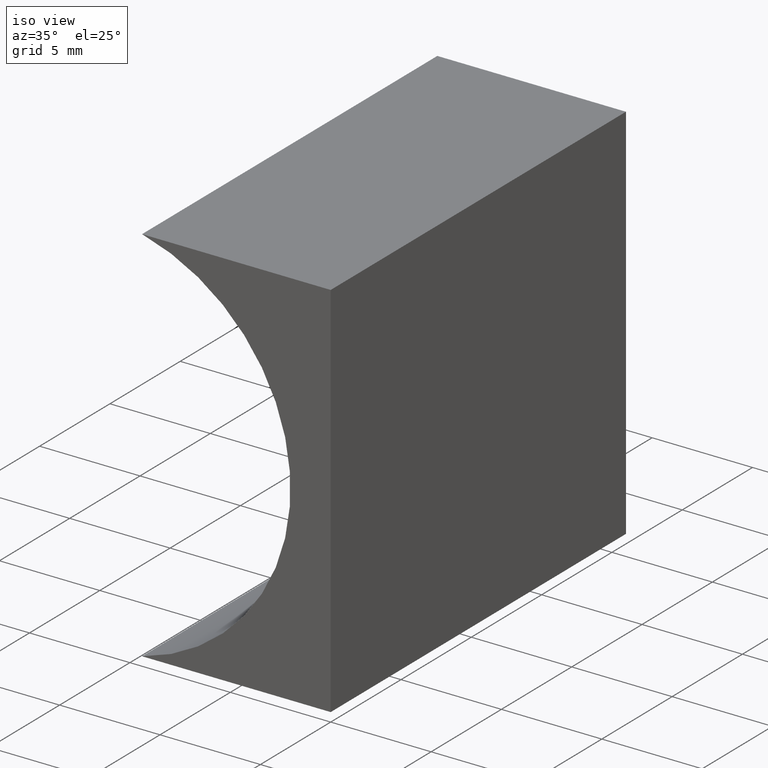
[diagram: clean part render]
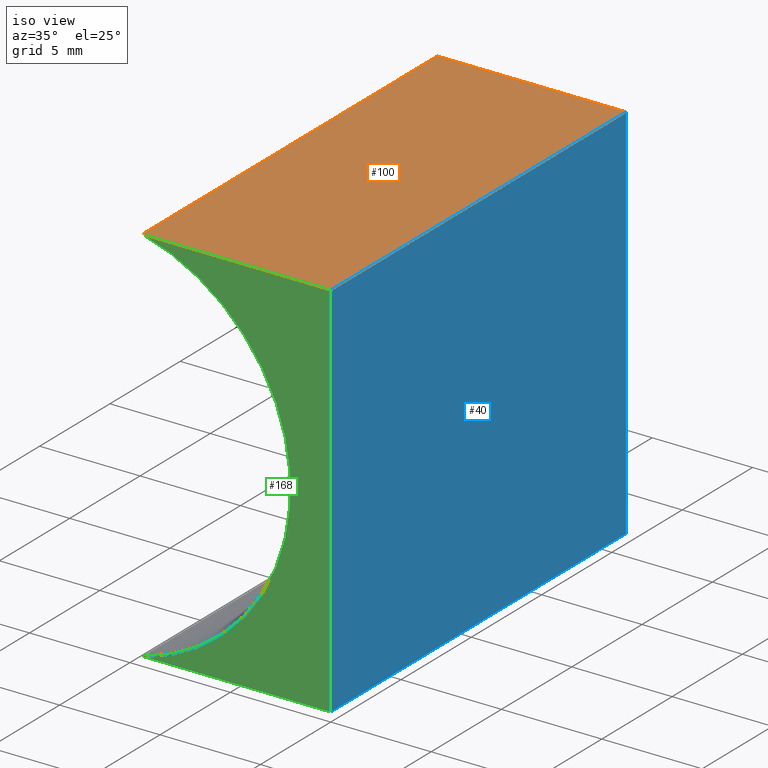
[diagram: same view with three faces highlighted in distinct colors, each labeled with its STEP entity id]
A machine part, iso view with three faces highlighted in distinct colors.
Their STEP definitions:

[orange] entity #100 — the highlighted planar face has unit normal (-0, 0, -1).
#1 = LINE ( 'NONE', #73, #2 ) ;
#2 = VECTOR ( 'NONE', #28, 1000.000000000000000 ) ;
#3 = VERTEX_POINT ( 'NONE', #93 ) ;
#5 = DIRECTION ( 'NONE',  ( 1.000000000000000000, -0.0000000000000000000, -3.693353510681764400E-016 ) ) ;
#17 = DIRECTION ( 'NONE',  ( -1.000000000000000000, 0.0000000000000000000, 3.693353510681765400E-016 ) ) ;
#18 = EDGE_CURVE ( 'NONE', #123, #200, #1, .T. ) ;
#26 = CARTESIAN_POINT ( 'NONE',  ( 1.163414459189985500E-015, 0.0000000000000000000, 19.00000000000000000 ) ) ;
#28 = DIRECTION ( 'NONE',  ( -0.0000000000000000000, -1.000000000000000000, -0.0000000000000000000 ) ) ;
#33 = EDGE_LOOP ( 'NONE', ( #137, #194, #66, #155 ) ) ;
#41 = FACE_OUTER_BOUND ( 'NONE', #33, .T. ) ;
#42 = DIRECTION ( 'NONE',  ( -3.693353510681765400E-016, 0.0000000000000000000, -1.000000000000000000 ) ) ;
#43 = DIRECTION ( 'NONE',  ( 1.000000000000000000, -0.0000000000000000000, -3.693353510681764400E-016 ) ) ;
#44 = DIRECTION ( 'NONE',  ( -0.0000000000000000000, -1.000000000000000000, -0.0000000000000000000 ) ) ;
#56 = EDGE_CURVE ( 'NONE', #123, #150, #89, .T. ) ;
#66 = ORIENTED_EDGE ( 'NONE', *, *, #56, .F. ) ;
#73 = CARTESIAN_POINT ( 'NONE',  ( -9.393758116896805200, 21.00000000000000000, 19.00000000000000400 ) ) ;
#85 = VECTOR ( 'NONE', #5, 1000.000000000000000 ) ;
#86 = CARTESIAN_POINT ( 'NONE',  ( -9.393758116896805200, 0.0000000000000000000, 19.00000000000000400 ) ) ;
#89 = LINE ( 'NONE', #97, #85 ) ;
#93 = CARTESIAN_POINT ( 'NONE',  ( 1.163414459189985500E-015, 0.0000000000000000000, 19.00000000000000000 ) ) ;
#97 = CARTESIAN_POINT ( 'NONE',  ( 1.163414459189985500E-015, 21.00000000000000000, 19.00000000000000000 ) ) ;
#100 = ADVANCED_FACE ( 'NONE', ( #41 ), #170, .F. ) ;
#101 = CARTESIAN_POINT ( 'NONE',  ( 1.163414459189985500E-015, 21.00000000000000000, 19.00000000000000000 ) ) ;
#107 = CARTESIAN_POINT ( 'NONE',  ( -9.393758116896805200, 21.00000000000000000, 19.00000000000000400 ) ) ;
#111 = LINE ( 'NONE', #101, #128 ) ;
#123 = VERTEX_POINT ( 'NONE', #107 ) ;
#128 = VECTOR ( 'NONE', #44, 1000.000000000000000 ) ;
#134 = VECTOR ( 'NONE', #43, 1000.000000000000000 ) ;
#137 = ORIENTED_EDGE ( 'NONE', *, *, #196, .T. ) ;
#141 = LINE ( 'NONE', #26, #134 ) ;
#147 = EDGE_CURVE ( 'NONE', #150, #3, #111, .T. ) ;
#150 = VERTEX_POINT ( 'NONE', #203 ) ;
#155 = ORIENTED_EDGE ( 'NONE', *, *, #18, .T. ) ;
#170 = PLANE ( 'NONE',  #204 ) ;
#193 = CARTESIAN_POINT ( 'NONE',  ( 1.163414459189985500E-015, 21.00000000000000000, 19.00000000000000000 ) ) ;
#194 = ORIENTED_EDGE ( 'NONE', *, *, #147, .F. ) ;
#196 = EDGE_CURVE ( 'NONE', #200, #3, #141, .T. ) ;
#200 = VERTEX_POINT ( 'NONE', #86 ) ;
#203 = CARTESIAN_POINT ( 'NONE',  ( 1.163414459189985500E-015, 21.00000000000000000, 19.00000000000000000 ) ) ;
#204 = AXIS2_PLACEMENT_3D ( 'NONE', #193, #42, #17 ) ;

[blue] entity #40 — the highlighted planar face has unit normal (-1, 0, 0).
#3 = VERTEX_POINT ( 'NONE', #93 ) ;
#4 = CARTESIAN_POINT ( 'NONE',  ( 0.0000000000000000000, 0.0000000000000000000, 0.0000000000000000000 ) ) ;
#21 = CARTESIAN_POINT ( 'NONE',  ( 0.0000000000000000000, 0.0000000000000000000, 0.0000000000000000000 ) ) ;
#25 = ORIENTED_EDGE ( 'NONE', *, *, #174, .F. ) ;
#40 = ADVANCED_FACE ( 'NONE', ( #76 ), #130, .F. ) ;
#44 = DIRECTION ( 'NONE',  ( -0.0000000000000000000, -1.000000000000000000, -0.0000000000000000000 ) ) ;
#48 = CARTESIAN_POINT ( 'NONE',  ( 0.0000000000000000000, 21.00000000000000000, 0.0000000000000000000 ) ) ;
#50 = ORIENTED_EDGE ( 'NONE', *, *, #158, .F. ) ;
#53 = VERTEX_POINT ( 'NONE', #88 ) ;
#69 = DIRECTION ( 'NONE',  ( -0.0000000000000000000, -1.000000000000000000, -0.0000000000000000000 ) ) ;
#76 = FACE_OUTER_BOUND ( 'NONE', #192, .T. ) ;
#78 = LINE ( 'NONE', #79, #117 ) ;
#79 = CARTESIAN_POINT ( 'NONE',  ( 0.0000000000000000000, 21.00000000000000000, 0.0000000000000000000 ) ) ;
#80 = LINE ( 'NONE', #21, #82 ) ;
#82 = VECTOR ( 'NONE', #179, 1000.000000000000000 ) ;
#88 = CARTESIAN_POINT ( 'NONE',  ( 0.0000000000000000000, 21.00000000000000000, 0.0000000000000000000 ) ) ;
#93 = CARTESIAN_POINT ( 'NONE',  ( 1.163414459189985500E-015, 0.0000000000000000000, 19.00000000000000000 ) ) ;
#98 = LINE ( 'NONE', #48, #146 ) ;
#101 = CARTESIAN_POINT ( 'NONE',  ( 1.163414459189985500E-015, 21.00000000000000000, 19.00000000000000000 ) ) ;
#102 = DIRECTION ( 'NONE',  ( -1.000000000000000000, 0.0000000000000000000, 6.123233995736767300E-017 ) ) ;
#109 = EDGE_CURVE ( 'NONE', #3, #160, #80, .T. ) ;
#111 = LINE ( 'NONE', #101, #128 ) ;
#115 = ORIENTED_EDGE ( 'NONE', *, *, #109, .T. ) ;
#117 = VECTOR ( 'NONE', #124, 1000.000000000000000 ) ;
#119 = AXIS2_PLACEMENT_3D ( 'NONE', #159, #102, #188 ) ;
#124 = DIRECTION ( 'NONE',  ( -6.123233995736766000E-017, -0.0000000000000000000, -1.000000000000000000 ) ) ;
#128 = VECTOR ( 'NONE', #44, 1000.000000000000000 ) ;
#130 = PLANE ( 'NONE',  #119 ) ;
#133 = ORIENTED_EDGE ( 'NONE', *, *, #147, .T. ) ;
#146 = VECTOR ( 'NONE', #69, 1000.000000000000000 ) ;
#147 = EDGE_CURVE ( 'NONE', #150, #3, #111, .T. ) ;
#150 = VERTEX_POINT ( 'NONE', #203 ) ;
#158 = EDGE_CURVE ( 'NONE', #150, #53, #78, .T. ) ;
#159 = CARTESIAN_POINT ( 'NONE',  ( 0.0000000000000000000, 21.00000000000000000, 0.0000000000000000000 ) ) ;
#160 = VERTEX_POINT ( 'NONE', #4 ) ;
#174 = EDGE_CURVE ( 'NONE', #53, #160, #98, .T. ) ;
#179 = DIRECTION ( 'NONE',  ( -6.123233995736766000E-017, -0.0000000000000000000, -1.000000000000000000 ) ) ;
#188 = DIRECTION ( 'NONE',  ( 6.123233995736767300E-017, 0.0000000000000000000, 1.000000000000000000 ) ) ;
#192 = EDGE_LOOP ( 'NONE', ( #115, #25, #50, #133 ) ) ;
#203 = CARTESIAN_POINT ( 'NONE',  ( 1.163414459189985500E-015, 21.00000000000000000, 19.00000000000000000 ) ) ;

[green] entity #168 — the highlighted planar face has unit normal (0, 1, 0).
#3 = VERTEX_POINT ( 'NONE', #93 ) ;
#4 = CARTESIAN_POINT ( 'NONE',  ( 0.0000000000000000000, 0.0000000000000000000, 0.0000000000000000000 ) ) ;
#14 = ORIENTED_EDGE ( 'NONE', *, *, #60, .F. ) ;
#21 = CARTESIAN_POINT ( 'NONE',  ( 0.0000000000000000000, 0.0000000000000000000, 0.0000000000000000000 ) ) ;
#24 = DIRECTION ( 'NONE',  ( -0.0000000000000000000, -1.000000000000000000, -0.0000000000000000000 ) ) ;
#26 = CARTESIAN_POINT ( 'NONE',  ( 1.163414459189985500E-015, 0.0000000000000000000, 19.00000000000000000 ) ) ;
#35 = CARTESIAN_POINT ( 'NONE',  ( -11.79999999999999900, 0.0000000000000000000, 9.500000000000003600 ) ) ;
#43 = DIRECTION ( 'NONE',  ( 1.000000000000000000, -0.0000000000000000000, -3.693353510681764400E-016 ) ) ;
#47 = EDGE_CURVE ( 'NONE', #160, #63, #74, .T. ) ;
#54 = CARTESIAN_POINT ( 'NONE',  ( -9.393758116896808700, 0.0000000000000000000, 1.734723475976807100E-015 ) ) ;
#60 = EDGE_CURVE ( 'NONE', #63, #200, #70, .T. ) ;
#63 = VERTEX_POINT ( 'NONE', #54 ) ;
#70 = CIRCLE ( 'NONE', #138, 9.800000000000000700 ) ;
#74 = LINE ( 'NONE', #87, #186 ) ;
#80 = LINE ( 'NONE', #21, #82 ) ;
#82 = VECTOR ( 'NONE', #179, 1000.000000000000000 ) ;
#86 = CARTESIAN_POINT ( 'NONE',  ( -9.393758116896805200, 0.0000000000000000000, 19.00000000000000400 ) ) ;
#87 = CARTESIAN_POINT ( 'NONE',  ( 0.0000000000000000000, 0.0000000000000000000, 0.0000000000000000000 ) ) ;
#90 = DIRECTION ( 'NONE',  ( -1.000000000000000000, 0.0000000000000000000, 0.0000000000000000000 ) ) ;
#91 = DIRECTION ( 'NONE',  ( 0.0000000000000000000, 1.000000000000000000, 0.0000000000000000000 ) ) ;
#93 = CARTESIAN_POINT ( 'NONE',  ( 1.163414459189985500E-015, 0.0000000000000000000, 19.00000000000000000 ) ) ;
#104 = ORIENTED_EDGE ( 'NONE', *, *, #196, .F. ) ;
#109 = EDGE_CURVE ( 'NONE', #3, #160, #80, .T. ) ;
#122 = FACE_OUTER_BOUND ( 'NONE', #165, .T. ) ;
#134 = VECTOR ( 'NONE', #43, 1000.000000000000000 ) ;
#138 = AXIS2_PLACEMENT_3D ( 'NONE', #144, #24, #184 ) ;
#141 = LINE ( 'NONE', #26, #134 ) ;
#142 = ORIENTED_EDGE ( 'NONE', *, *, #109, .F. ) ;
#144 = CARTESIAN_POINT ( 'NONE',  ( -11.79999999999999900, 0.0000000000000000000, 9.500000000000003600 ) ) ;
#154 = AXIS2_PLACEMENT_3D ( 'NONE', #35, #91, #163 ) ;
#160 = VERTEX_POINT ( 'NONE', #4 ) ;
#163 = DIRECTION ( 'NONE',  ( 0.0000000000000000000, -0.0000000000000000000, 1.000000000000000000 ) ) ;
#164 = PLANE ( 'NONE',  #154 ) ;
#165 = EDGE_LOOP ( 'NONE', ( #183, #142, #104, #14 ) ) ;
#168 = ADVANCED_FACE ( 'NONE', ( #122 ), #164, .F. ) ;
#179 = DIRECTION ( 'NONE',  ( -6.123233995736766000E-017, -0.0000000000000000000, -1.000000000000000000 ) ) ;
#183 = ORIENTED_EDGE ( 'NONE', *, *, #47, .F. ) ;
#184 = DIRECTION ( 'NONE',  ( 0.0000000000000000000, 0.0000000000000000000, 1.000000000000000000 ) ) ;
#186 = VECTOR ( 'NONE', #90, 1000.000000000000000 ) ;
#196 = EDGE_CURVE ( 'NONE', #200, #3, #141, .T. ) ;
#200 = VERTEX_POINT ( 'NONE', #86 ) ;